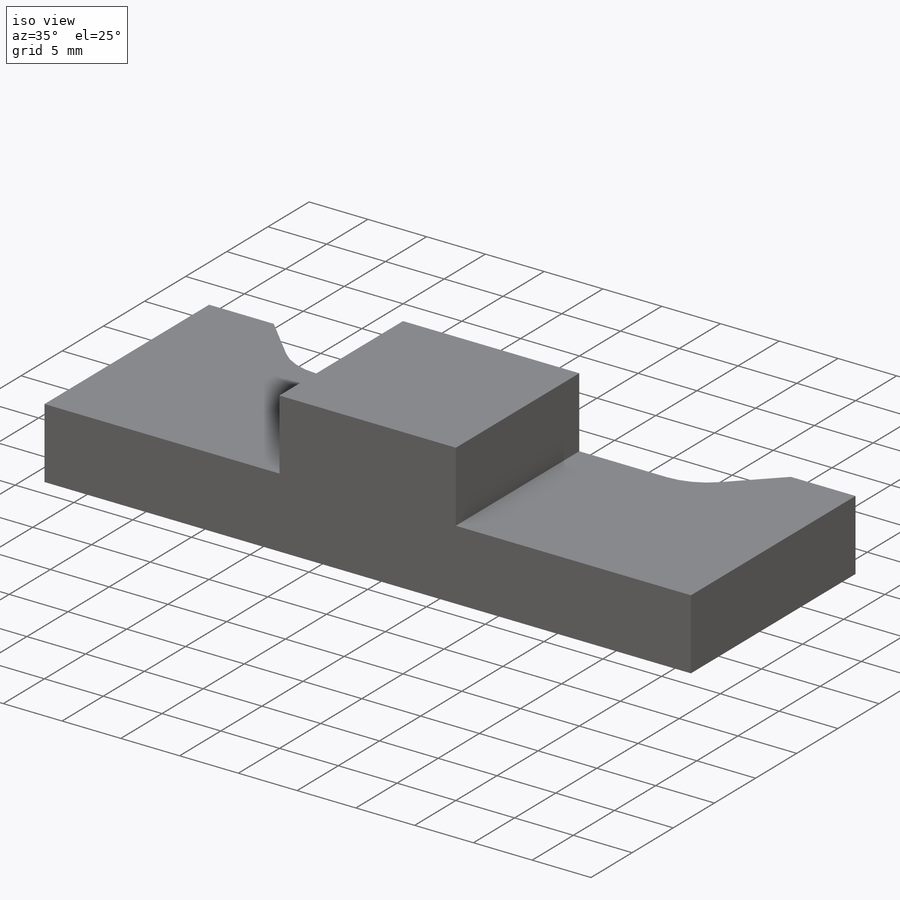
[diagram: iso view]
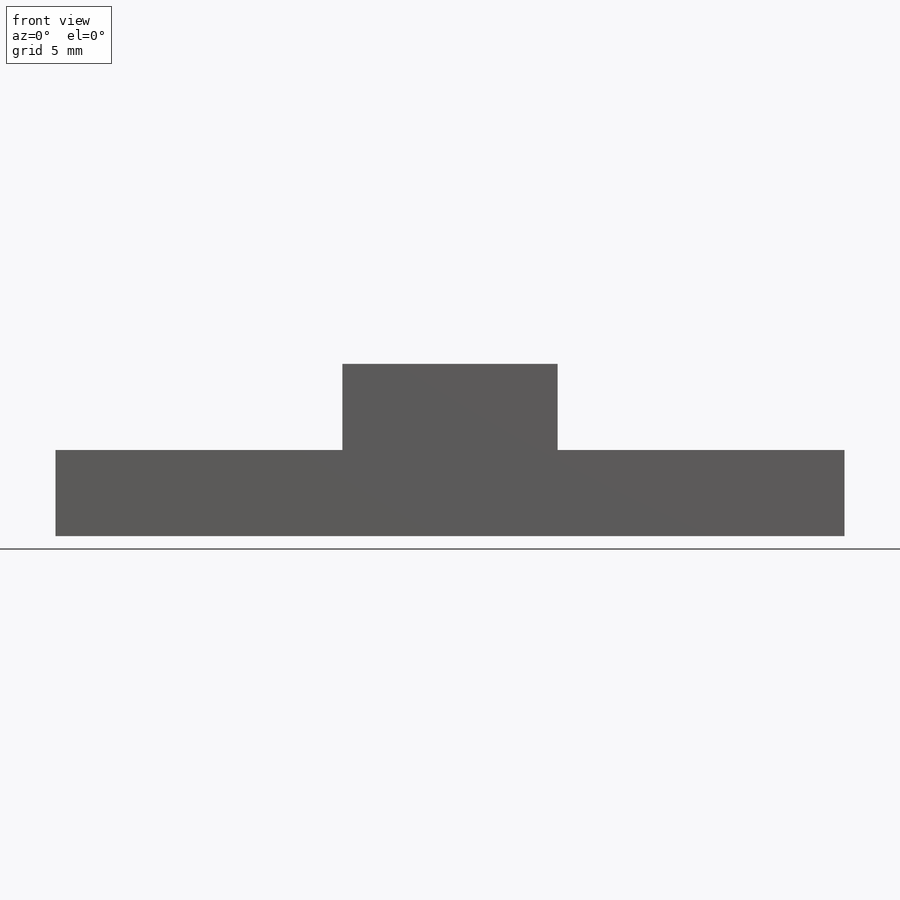
[diagram: front view]
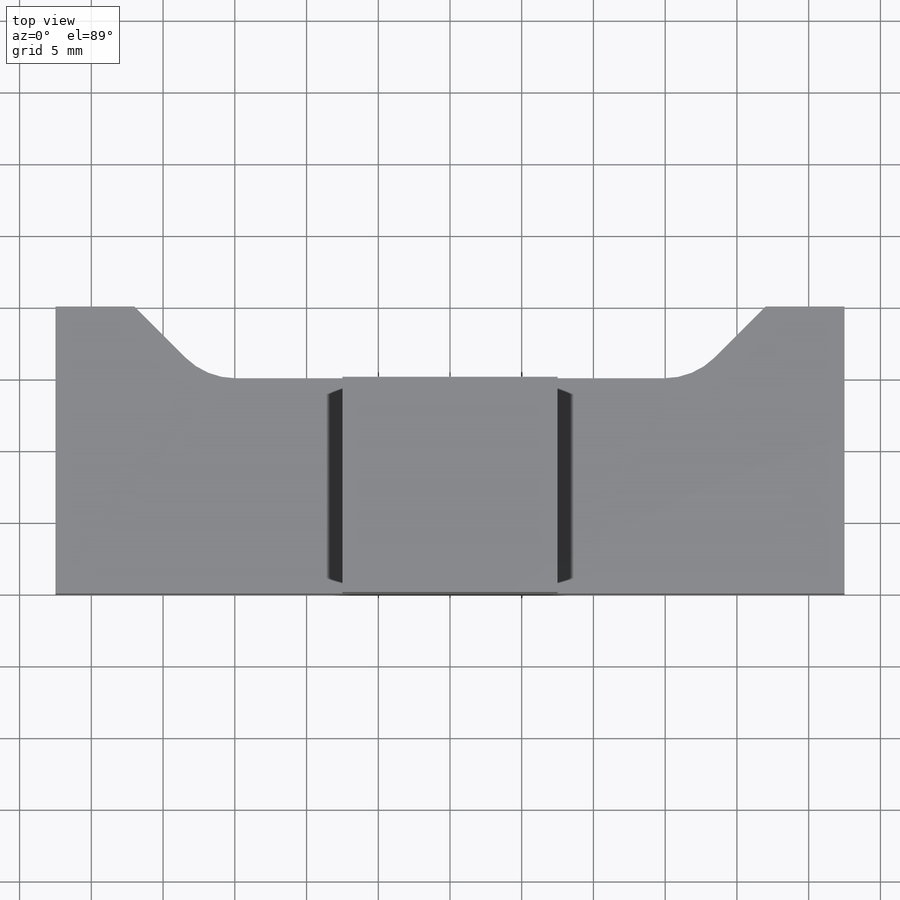
[diagram: top view]
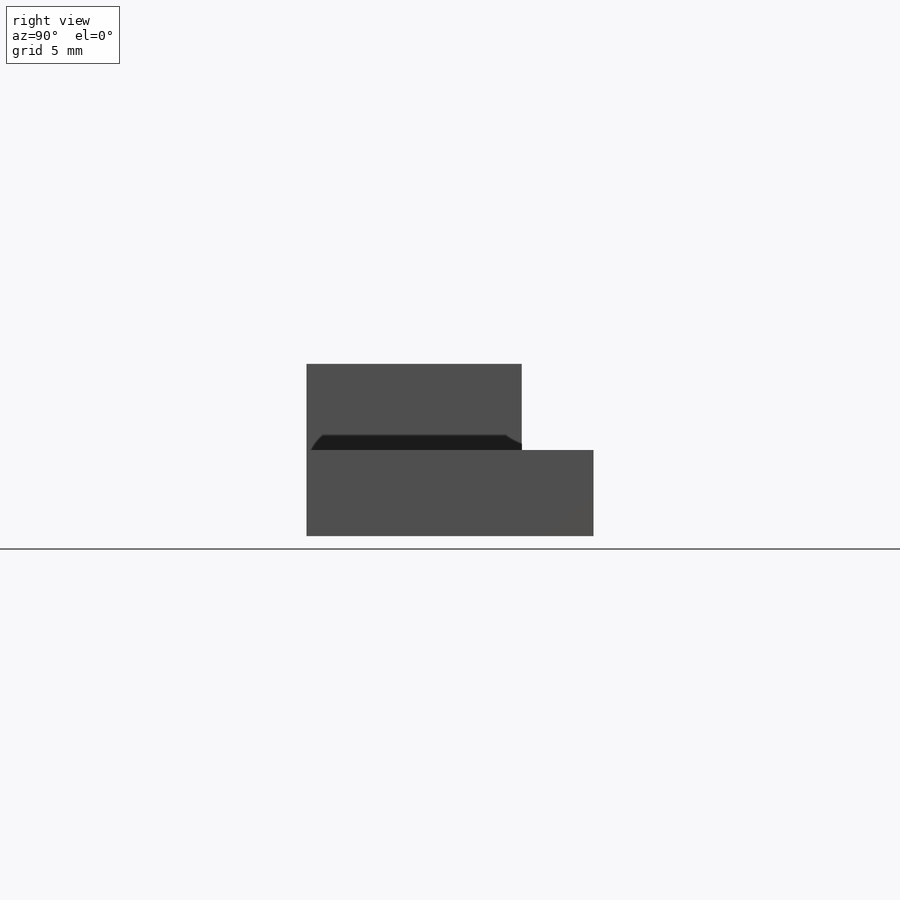
[diagram: right view]
SOLIDWORKS PART (.sldprt)
format: sldprt  version: not decoded by parser v0  size: 213,504 bytes
history: native  units: mm
features: sketch x4, material x1, extrude x1, hole x1, cut_extrude x1, fillet x1 (+11 scaffold rows collapsed)
feature tree (20):
  scaffold x11  (default folders/planes/origin — collapsed)
  material  "1060 Alloy"
  sketch  "Sketch4"  dims[D1=6.0mm D2=55.0mm D3=15.0mm D4=12.0mm]
  extrude  "Boss-Extrude2"  Depth=20mm
  hole  "Tap Drill for M6 Tap2"  Diameter=5mm Depth=8mm
  sketch  "Sketch6"  dims[D1=6.0mm]
  sketch  "Sketch5"  dims[hole-wizard template sketch: 47 standard entries collapsed; hole parameters kept: c15.Hole Depth=8.0mm c15.D3=~14.816244mm c15.Drill Angle=118.0deg]
  sketch  "Sketch7"  dims[c1.D1=36.0mm c1.D2=~15.131971mm c2.D1=~6.080859mm c3.D1=45.0deg c3.D2=~2.604879mm c4.D2=45.0deg c4.D3=34.0mm c4.D4=17.0mm c4.D5=5.0mm]
  cut_extrude  "Cut-Extrude1"  [1 undecoded]
  fillet  "Fillet1"  Radius=5mm
decode coverage: 7 of 8 modeling features carry decoded parameters
note: ~ marks probable driven/reference dimensions
note: 1 parameter value undecoded
note: suppression state not decoded; provenance and decode notes live in map.json
